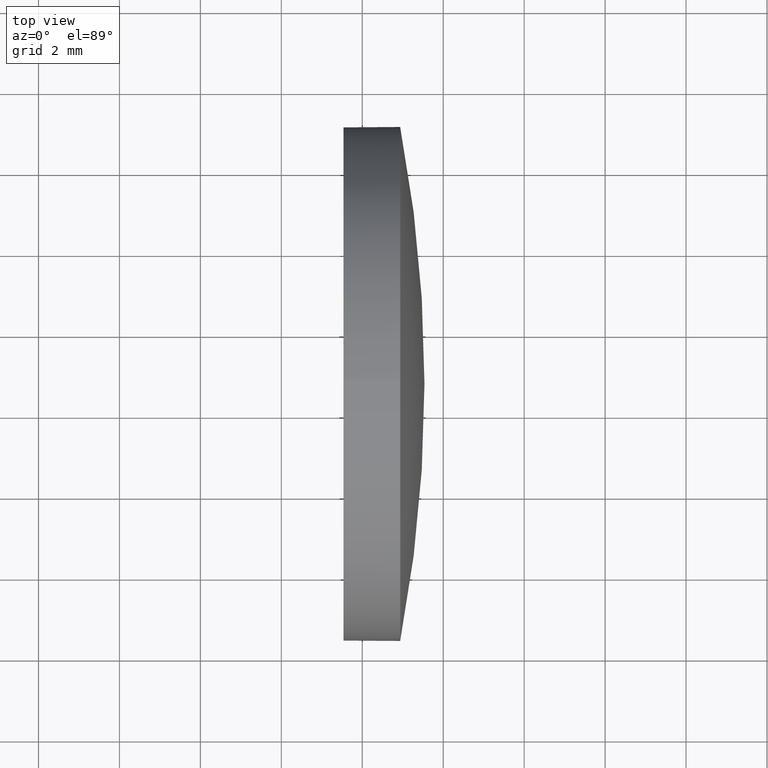
[diagram: clean part render]
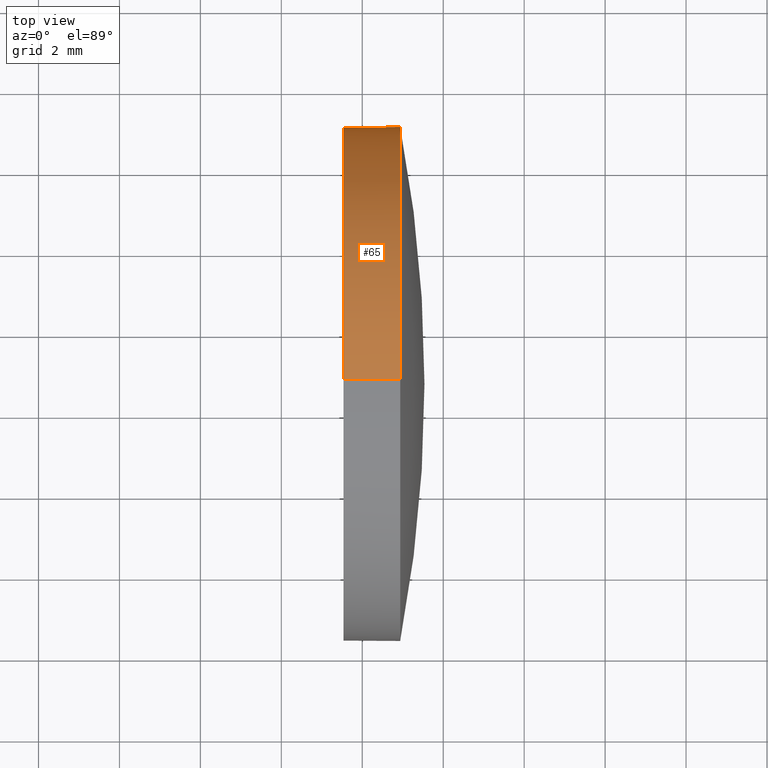
[diagram: same view with one face highlighted and labeled with its STEP entity id]
A machine part, top view. The second image highlights one B-rep face of the part: STEP entity #65.
In plain terms, the highlighted cylindrical surface (partial cylindrical patch) has radius 6.35 mm, axis along (-1, -0, -0).
Its self-contained STEP definition (entity closure, byte-faithful):
#1 = VERTEX_POINT ( 'NONE', #58 ) ;
#5 = AXIS2_PLACEMENT_3D ( 'NONE', #174, #82, #184 ) ;
#8 = EDGE_CURVE ( 'NONE', #84, #160, #141, .T. ) ;
#10 = ORIENTED_EDGE ( 'NONE', *, *, #98, .T. ) ;
#11 = DIRECTION ( 'NONE',  ( -1.000000000000000000, -0.0000000000000000000, -0.0000000000000000000 ) ) ;
#12 = CARTESIAN_POINT ( 'NONE',  ( 196.9368600580019700, 18.73237217798914900, -6.350000000000001400 ) ) ;
#23 = AXIS2_PLACEMENT_3D ( 'NONE', #46, #97, #61 ) ;
#25 = DIRECTION ( 'NONE',  ( 0.0000000000000000000, 0.0000000000000000000, 1.000000000000000000 ) ) ;
#35 = LINE ( 'NONE', #39, #68 ) ;
#36 = CIRCLE ( 'NONE', #23, 6.350000000000001400 ) ;
#38 = ORIENTED_EDGE ( 'NONE', *, *, #105, .F. ) ;
#39 = CARTESIAN_POINT ( 'NONE',  ( 192.6677510401637500, 18.73237217798914900, 6.350000000000001400 ) ) ;
#40 = EDGE_CURVE ( 'NONE', #1, #59, #35, .T. ) ;
#41 = CYLINDRICAL_SURFACE ( 'NONE', #5, 6.350000000000001400 ) ;
#42 = CARTESIAN_POINT ( 'NONE',  ( 192.6677510401637500, 18.73237217798914900, -6.350000000000001400 ) ) ;
#44 = DIRECTION ( 'NONE',  ( -1.000000000000000000, -0.0000000000000000000, -0.0000000000000000000 ) ) ;
#46 = CARTESIAN_POINT ( 'NONE',  ( 196.9368600580019700, 18.73237217798914900, 0.0000000000000000000 ) ) ;
#49 = ORIENTED_EDGE ( 'NONE', *, *, #40, .F. ) ;
#51 = EDGE_LOOP ( 'NONE', ( #10, #152, #38, #49, #54 ) ) ;
#54 = ORIENTED_EDGE ( 'NONE', *, *, #179, .T. ) ;
#55 = CARTESIAN_POINT ( 'NONE',  ( 195.5368600580019300, 18.73237217798914900, 6.350000000000001400 ) ) ;
#58 = CARTESIAN_POINT ( 'NONE',  ( 196.9368600580019700, 18.73237217798914900, 6.350000000000001400 ) ) ;
#59 = VERTEX_POINT ( 'NONE', #55 ) ;
#61 = DIRECTION ( 'NONE',  ( 0.0000000000000000000, 0.0000000000000000000, 1.000000000000000000 ) ) ;
#65 = ADVANCED_FACE ( 'NONE', ( #133 ), #41, .T. ) ;
#68 = VECTOR ( 'NONE', #11, 1000.000000000000000 ) ;
#82 = DIRECTION ( 'NONE',  ( -1.000000000000000000, -0.0000000000000000000, -0.0000000000000000000 ) ) ;
#84 = VERTEX_POINT ( 'NONE', #12 ) ;
#85 = DIRECTION ( 'NONE',  ( -1.000000000000000000, -0.0000000000000000000, -0.0000000000000000000 ) ) ;
#97 = DIRECTION ( 'NONE',  ( -1.000000000000000000, -0.0000000000000000000, -0.0000000000000000000 ) ) ;
#98 = EDGE_CURVE ( 'NONE', #124, #84, #150, .T. ) ;
#105 = EDGE_CURVE ( 'NONE', #59, #160, #170, .T. ) ;
#123 = DIRECTION ( 'NONE',  ( -1.000000000000000000, -0.0000000000000000000, -0.0000000000000000000 ) ) ;
#124 = VERTEX_POINT ( 'NONE', #125 ) ;
#125 = CARTESIAN_POINT ( 'NONE',  ( 196.9368600580019700, 25.08237217798917800, 0.0000000000000000000 ) ) ;
#126 = CARTESIAN_POINT ( 'NONE',  ( 195.5368600580019300, 18.73237217798914900, -6.350000000000001400 ) ) ;
#133 = FACE_OUTER_BOUND ( 'NONE', #51, .T. ) ;
#134 = AXIS2_PLACEMENT_3D ( 'NONE', #176, #123, #140 ) ;
#140 = DIRECTION ( 'NONE',  ( 0.0000000000000000000, 0.0000000000000000000, 1.000000000000000000 ) ) ;
#141 = LINE ( 'NONE', #42, #178 ) ;
#142 = CARTESIAN_POINT ( 'NONE',  ( 195.5368600580019300, 18.73237217798914900, 0.0000000000000000000 ) ) ;
#150 = CIRCLE ( 'NONE', #134, 6.350000000000001400 ) ;
#151 = AXIS2_PLACEMENT_3D ( 'NONE', #142, #85, #25 ) ;
#152 = ORIENTED_EDGE ( 'NONE', *, *, #8, .T. ) ;
#160 = VERTEX_POINT ( 'NONE', #126 ) ;
#170 = CIRCLE ( 'NONE', #151, 6.350000000000001400 ) ;
#174 = CARTESIAN_POINT ( 'NONE',  ( 192.6677510401637500, 18.73237217798914900, 0.0000000000000000000 ) ) ;
#176 = CARTESIAN_POINT ( 'NONE',  ( 196.9368600580019700, 18.73237217798914900, 0.0000000000000000000 ) ) ;
#178 = VECTOR ( 'NONE', #44, 1000.000000000000000 ) ;
#179 = EDGE_CURVE ( 'NONE', #1, #124, #36, .T. ) ;
#184 = DIRECTION ( 'NONE',  ( 0.0000000000000000000, 0.0000000000000000000, 1.000000000000000000 ) ) ;